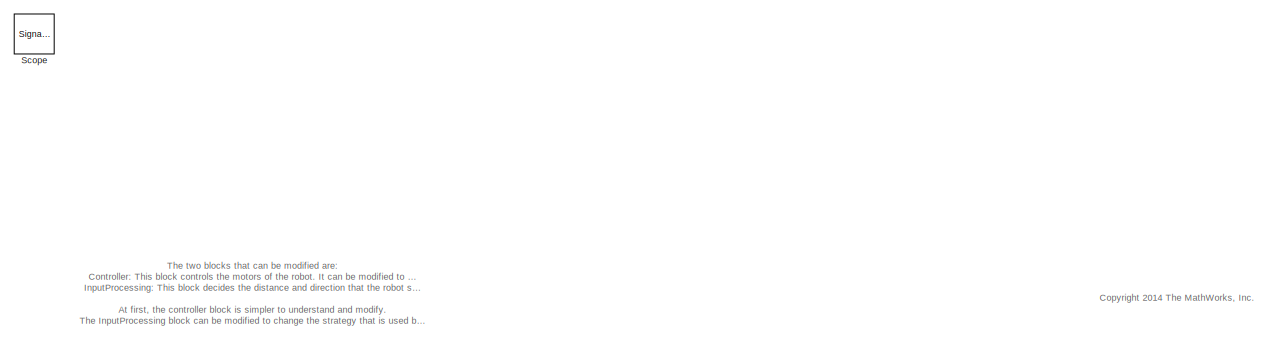
[diagram: root canvas - part 1/2, full width, top band]
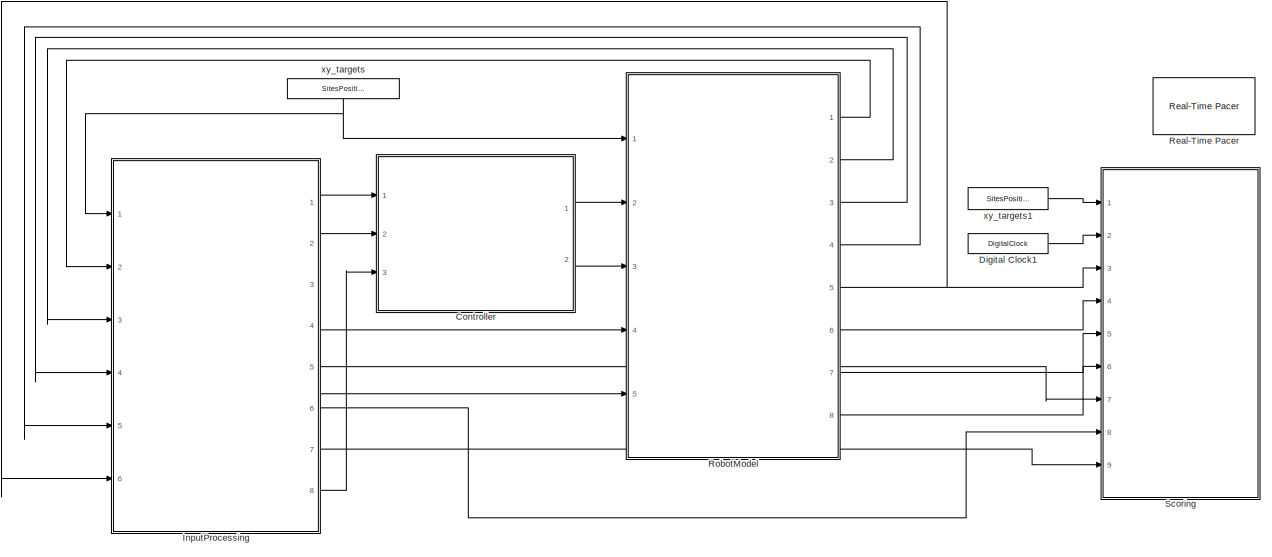
[diagram: root canvas - part 2/2, full width, bottom band]
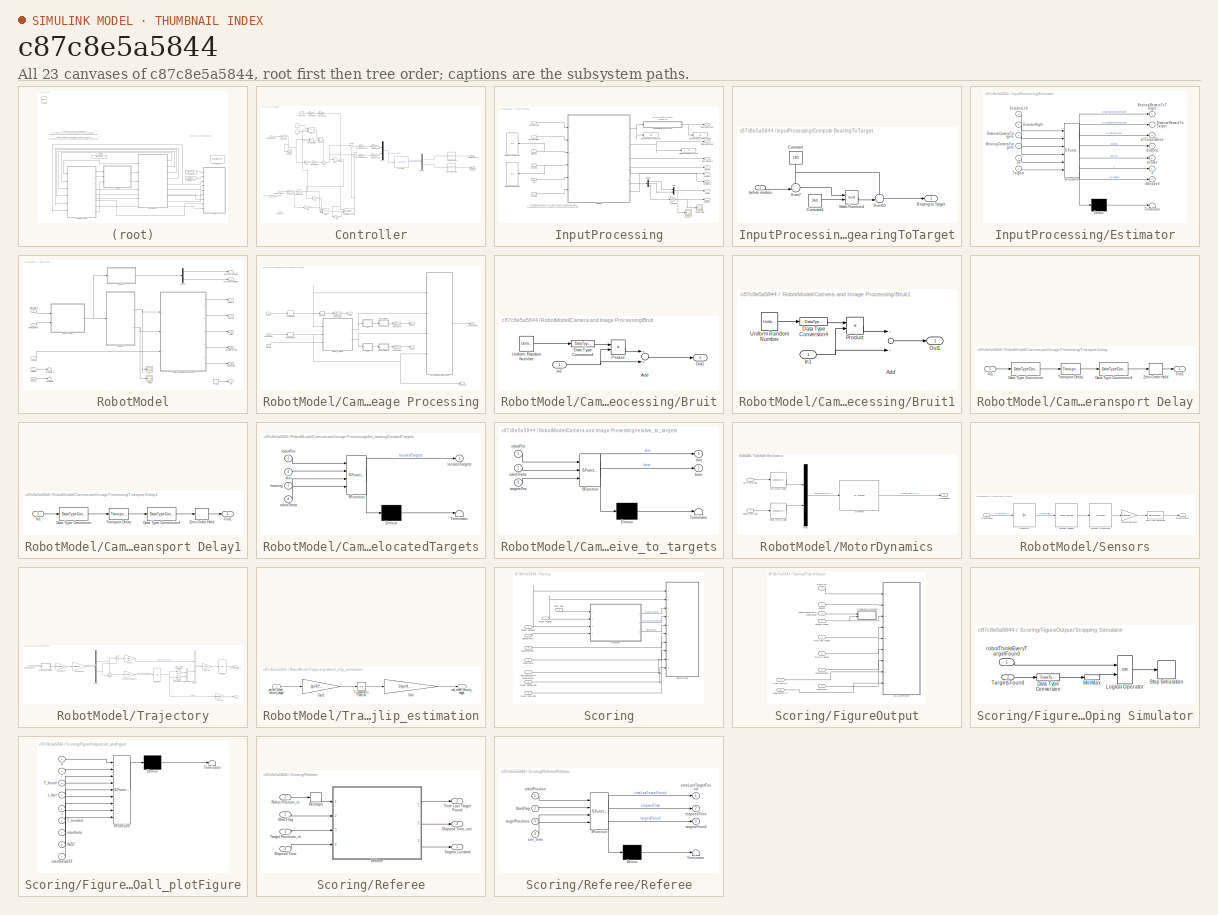
[diagram: thumbnail index - all 23 canvases of the model, root first then tree order]
MODEL slx_c87c8e5a5844
KIND model
CONFIG InitFcn = close('all','force');\n
CONFIG PostLoadFcn = loadRobotParameters\n
CONFIG StartFcn = reset(SimDisplay.getInstance());
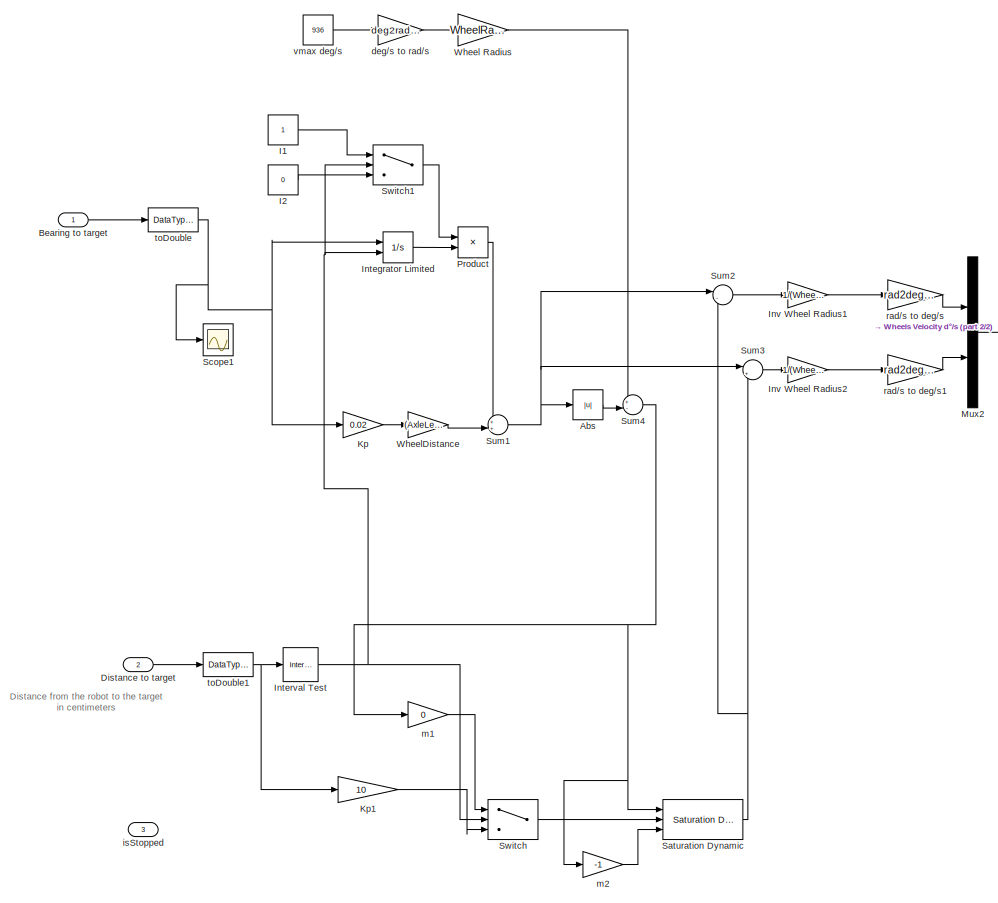
[diagram: Controller - part 1/2, left side, full height]
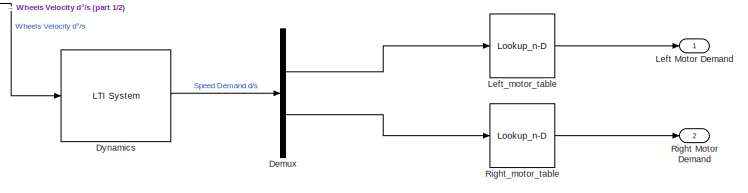
[diagram: Controller - part 2/2, middle right region]
BLOCK [SubSystem] Controller
  Ports = [3, 2]
  RequestExecContextInheritance = off
  TreatAsAtomicUnit = on
BLOCK [Abs] Controller/Abs
  SaturateOnIntegerOverflow = off
BLOCK [Inport] Controller/Bearing to target
  IconDisplay = Port number
  OutDataTypeStr = single
  SamplingMode = Sample based
  SignalType = real
BLOCK [Demux] Controller/Demux
  DisplayOption = bar
  Outputs = 2
  Ports = [1, 2]
BLOCK [Inport] Controller/Distance to target
  IconDisplay = Port number
  Port = 2
  PortDimensions = 1
  SampleTime = Ts
  SamplingMode = Sample based
  SignalType = real
BLOCK [Reference] Controller/Dynamics  REF=cstblocks/LTI System
  IC = []
  Ports = [1, 1]
  SourceBlock = cstblocks/LTI System
  SourceType = LTI Block
  sys = tf(1)*eye(2)
BLOCK [Constant] Controller/I1
BLOCK [Constant] Controller/I2
  Value = 0
BLOCK [Integrator] Controller/Integrator Limited
  ExternalReset = falling
  LimitOutput = on
  LowerSaturationLimit = -100*deg2rad(1)*WheelRadius/100
  Ports = [2, 1]
  UpperSaturationLimit = 100*deg2rad(1)*WheelRadius/100
BLOCK [Reference] Controller/Interval Test  REF=simulink/Logic and Bit
Operations/Interval Test
  IntervalClosedLeft = on
  IntervalClosedRight = on
  OutDataTypeStr = boolean
  Ports = [1, 1]
  SourceBlock = simulink/Logic and Bit\nOperations/Interval Test
  SourceType = Interval Test
  lowlimit = -7
  uplimit = 7
BLOCK [Gain] Controller/Inv Wheel Radius1
  Gain = 1/(WheelRadius/100)
  OutDataTypeStr = Inherit: Inherit via internal rule
  ParamDataTypeStr = Inherit: Inherit via internal rule
  SaturateOnIntegerOverflow = off
BLOCK [Gain] Controller/Inv Wheel Radius2
  Gain = 1/(WheelRadius/100)
  OutDataTypeStr = Inherit: Inherit via internal rule
  ParamDataTypeStr = Inherit: Inherit via internal rule
  SaturateOnIntegerOverflow = off
BLOCK [Gain] Controller/Kp
  Gain = 0.02
  OutDataTypeStr = Inherit: Inherit via internal rule
  ParamDataTypeStr = Inherit: Inherit via internal rule
  SaturateOnIntegerOverflow = off
BLOCK [Gain] Controller/Kp1
  Gain = 10
  OutDataTypeStr = Inherit: Inherit via internal rule
  ParamDataTypeStr = Inherit: Inherit via internal rule
  SaturateOnIntegerOverflow = off
BLOCK [Outport] Controller/Left Motor Demand
  IconDisplay = Port number
  OutDataTypeStr = single
BLOCK [Lookup_n-D] Controller/Left_motor_table
  BreakpointsForDimension1 = motorLinv
  ExtrapMethod = Clip
  InternalRulePriority = Speed
  NumberOfTableDimensions = 1
  OutDataTypeStr = Inherit: Inherit via back propagation
  Ports = [1, 1]
  RndMeth = Simplest
  Table = motorX
BLOCK [Mux] Controller/Mux2
  DisplayOption = bar
  Inputs = 2
  Ports = [2, 1]
BLOCK [Product] Controller/Product
  InputSameDT = off
  OutDataTypeStr = Inherit: Inherit via internal rule
  Ports = [2, 1]
  RndMeth = Floor
  SaturateOnIntegerOverflow = off
BLOCK [Outport] Controller/Right Motor Demand
  IconDisplay = Port number
  OutDataTypeStr = single
  Port = 2
BLOCK [Lookup_n-D] Controller/Right_motor_table
  BreakpointsForDimension1 = motorRinv
  ExtrapMethod = Clip
  InternalRulePriority = Speed
  NumberOfTableDimensions = 1
  OutDataTypeStr = Inherit: Inherit via back propagation
  Ports = [1, 1]
  RndMeth = Simplest
  Table = motorX
BLOCK [Reference] Controller/Saturation Dynamic  REF=simulink/Discontinuities/Saturation
Dynamic
  DoSatur = off
  LockScale = off
  OutDataType = fixdt(1, 16)
  OutDataTypeStr = Inherit: Same as second input
  OutMax = []
  OutMin = []
  OutScaling = 2^-10
  OutputDataTypeScalingMode = Same as second input
  Ports = [3, 1]
  RndMeth = Floor
  SourceBlock = simulink/Discontinuities/Saturation\nDynamic
  SourceType = Saturation Dynamic
BLOCK [Scope] Controller/Scope1
  Floating = off
  NumInputPorts = 1
  Ports = [1]
  SaveName = ScopeData2
  ShowLegends = off
BLOCK [Sum] Controller/Sum1
  IconShape = round
  InputSameDT = off
  Inputs = ++|
  OutDataTypeStr = Inherit: Inherit via internal rule
  Ports = [2, 1]
  SaturateOnIntegerOverflow = off
BLOCK [Sum] Controller/Sum2
  IconShape = round
  InputSameDT = off
  Inputs = |-+
  OutDataTypeStr = Inherit: Inherit via internal rule
  Ports = [2, 1]
  SaturateOnIntegerOverflow = off
BLOCK [Sum] Controller/Sum3
  IconShape = round
  InputSameDT = off
  Inputs = |++
  OutDataTypeStr = Inherit: Inherit via internal rule
  Ports = [2, 1]
  SaturateOnIntegerOverflow = off
BLOCK [Sum] Controller/Sum4
  IconShape = round
  InputSameDT = off
  Inputs = +-|
  OutDataTypeStr = Inherit: Inherit via internal rule
  Ports = [2, 1]
  SaturateOnIntegerOverflow = off
BLOCK [Switch] Controller/Switch
  Criteria = u2 > Threshold
  InputSameDT = off
  SaturateOnIntegerOverflow = off
BLOCK [Switch] Controller/Switch1
  Criteria = u2 > Threshold
  InputSameDT = off
  SaturateOnIntegerOverflow = off
BLOCK [Gain] Controller/Wheel Radius
  Gain = WheelRadius/100
  OutDataTypeStr = Inherit: Inherit via internal rule
  ParamDataTypeStr = Inherit: Inherit via internal rule
  SaturateOnIntegerOverflow = off
BLOCK [Gain] Controller/WheelDistance
  Gain = (AxleLength/100)
  OutDataTypeStr = Inherit: Inherit via internal rule
  ParamDataTypeStr = Inherit: Inherit via internal rule
  SaturateOnIntegerOverflow = off
BLOCK [Gain] Controller/deg//s to rad//s
  Gain = deg2rad(1)
  OutDataTypeStr = Inherit: Inherit via internal rule
  ParamDataTypeStr = Inherit: Inherit via internal rule
  SaturateOnIntegerOverflow = off
BLOCK [Inport] Controller/isStopped
  IconDisplay = Port number
  Port = 3
  PortDimensions = 1
  SampleTime = Ts
  SamplingMode = Sample based
  SignalType = real
BLOCK [Gain] Controller/m1
  Gain = 0
  OutDataTypeStr = Inherit: Inherit via internal rule
  ParamDataTypeStr = Inherit: Inherit via internal rule
  SaturateOnIntegerOverflow = off
BLOCK [Gain] Controller/m2
  Gain = -1
  OutDataTypeStr = Inherit: Inherit via internal rule
  ParamDataTypeStr = Inherit: Inherit via internal rule
  SaturateOnIntegerOverflow = off
BLOCK [Gain] Controller/rad//s to deg//s
  Gain = rad2deg(1)
  OutDataTypeStr = Inherit: Inherit via internal rule
  ParamDataTypeStr = Inherit: Inherit via internal rule
  SaturateOnIntegerOverflow = off
BLOCK [Gain] Controller/rad//s to deg//s1
  Gain = rad2deg(1)
  OutDataTypeStr = Inherit: Inherit via internal rule
  ParamDataTypeStr = Inherit: Inherit via internal rule
  SaturateOnIntegerOverflow = off
BLOCK [DataTypeConversion] Controller/toDouble
  OutDataTypeStr = double
  RndMeth = Floor
  SaturateOnIntegerOverflow = off
BLOCK [DataTypeConversion] Controller/toDouble1
  OutDataTypeStr = double
  RndMeth = Floor
  SaturateOnIntegerOverflow = off
BLOCK [Constant] Controller/vmax deg//s
  Value = 936
BLOCK [DigitalClock] Digital Clock1
  SampleTime = Ts
BLOCK [SubSystem] InputProcessing
  Ports = [6, 8]
  RequestExecContextInheritance = off
BLOCK [Outport] InputProcessing/Bearing to Target
  IconDisplay = Port number
  SampleTime = Ts
BLOCK [Display] InputProcessing/BearingTo All Targets
  Decimation = 1
  Ports = [1]
BLOCK [Display] InputProcessing/BearingToCurrentTarget
  Decimation = 1
  Ports = [1]
BLOCK [Display] InputProcessing/BearingToCurrentTargetDeg
  Decimation = 1
  Ports = [1]
BLOCK [SubSystem] InputProcessing/Compute BearingToTarget
  Ports = [1, 1]
  RequestExecContextInheritance = off
BLOCK [Outport] InputProcessing/Compute BearingToTarget/Bearing to Target
  IconDisplay = Port number
  SampleTime = Ts
BLOCK [Constant] InputProcessing/Compute BearingToTarget/Constant
  OutDataTypeStr = Inherit: Inherit via back propagation
  Value = 180
BLOCK [Constant] InputProcessing/Compute BearingToTarget/Constant1
  OutDataTypeStr = Inherit: Inherit via back propagation
  Value = 360
BLOCK [Math] InputProcessing/Compute BearingToTarget/Math Function1
  Operator = mod
  Ports = [2, 1]
BLOCK [Sum] InputProcessing/Compute BearingToTarget/Sum10
  IconShape = round
  InputSameDT = off
  Inputs = -+|
  OutDataTypeStr = Inherit: Inherit via internal rule
  Ports = [2, 1]
  SaturateOnIntegerOverflow = off
BLOCK [Sum] InputProcessing/Compute BearingToTarget/Sum7
  IconShape = round
  InputSameDT = off
  Inputs = ++|
  OutDataTypeStr = Inherit: Inherit via internal rule
  Ports = [2, 1]
  SaturateOnIntegerOverflow = off
BLOCK [Inport] InputProcessing/Compute BearingToTarget/before modulo
  IconDisplay = Port number
BLOCK [Demux] InputProcessing/Demux
  DisplayOption = bar
  Outputs = 3
  Ports = [1, 3]
BLOCK [Outport] InputProcessing/Distance to Target
  IconDisplay = Port number
  Port = 2
BLOCK [Display] InputProcessing/DistanceRemainToTarget
  Decimation = 1
  Ports = [1]
BLOCK [Display] InputProcessing/DistanceTo All Targets
  Decimation = 1
  Ports = [1]
BLOCK [Inport] InputProcessing/Encoder Left
  IconDisplay = Port number
  OutDataTypeStr = int32
  Port = 2
BLOCK [Inport] InputProcessing/Encoder Right
  IconDisplay = Port number
  OutDataTypeStr = int32
  Port = 3
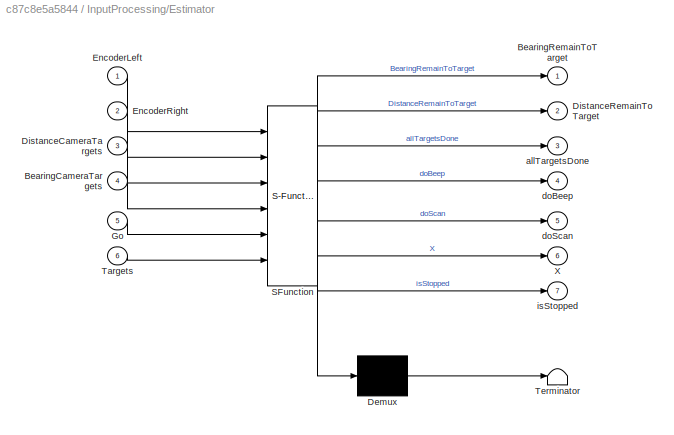
BLOCK [SubSystem] InputProcessing/Estimator
  ErrorFcn = Stateflow.Translate.translate
  PermitHierarchicalResolution = ExplicitOnly
  Ports = [6, 7]
  RequestExecContextInheritance = off
  SFBlockType = Chart
  TreatAsAtomicUnit = on
BLOCK [Demux] InputProcessing/Estimator/ Demux 
  Outputs = 1
  Ports = [1, 1]
BLOCK [S-Function] InputProcessing/Estimator/ SFunction 
  EnableBusSupport = on
  FunctionName = sf_sfun
  Parameters = AxleLength,EncRes,Ts,WheelRadius,lcam,pcam,slip_intensity,startPos,theta0
  PortCounts = [6 8]
  Ports = [6, 8]
  Tag = Stateflow S-Function SimulationModel 2
BLOCK [Terminator] InputProcessing/Estimator/ Terminator 
BLOCK [Inport] InputProcessing/Estimator/BearingCameraTargets
  IconDisplay = Port number
  Port = 4
BLOCK [Outport] InputProcessing/Estimator/BearingRemainToTarget
  IconDisplay = Port number
BLOCK [Inport] InputProcessing/Estimator/DistanceCameraTargets
  IconDisplay = Port number
  Port = 3
BLOCK [Outport] InputProcessing/Estimator/DistanceRemainToTarget
  IconDisplay = Port number
  Port = 2
BLOCK [Inport] InputProcessing/Estimator/EncoderLeft
  IconDisplay = Port number
BLOCK [Inport] InputProcessing/Estimator/EncoderRight
  IconDisplay = Port number
  Port = 2
BLOCK [Inport] InputProcessing/Estimator/Go
  IconDisplay = Port number
  Port = 5
BLOCK [Inport] InputProcessing/Estimator/Targets
  IconDisplay = Port number
  Port = 6
BLOCK [Outport] InputProcessing/Estimator/X
  IconDisplay = Port number
  Port = 6
BLOCK [Outport] InputProcessing/Estimator/allTargetsDone
  IconDisplay = Port number
  Port = 3
BLOCK [Outport] InputProcessing/Estimator/doBeep
  IconDisplay = Port number
  Port = 4
BLOCK [Outport] InputProcessing/Estimator/doScan
  IconDisplay = Port number
  Port = 5
BLOCK [Outport] InputProcessing/Estimator/isStopped
  IconDisplay = Port number
  Port = 7
BLOCK [Inport] InputProcessing/Go
  IconDisplay = Port number
  Port = 6
BLOCK [Mux] InputProcessing/Mux
  DisplayOption = bar
  Inputs = 2
  Ports = [2, 1]
BLOCK [Scope] InputProcessing/ScopeTheta
  DataFormat = StructureWithTime
  Floating = off
  NumInputPorts = 1
  Ports = [1]
  SampleTime = 0
  SaveName = ScopeData3
  ShowLegends = off
  TimeRange = 50
  YMax = 500
  YMin = 0
BLOCK [Scope] InputProcessing/ScopeXY
  DataFormat = StructureWithTime
  Floating = off
  NumInputPorts = 1
  Ports = [1]
  SampleTime = 0
  ShowLegends = off
  TimeRange = 50
  YMax = 100
  YMin = 0
BLOCK [Inport] InputProcessing/Targets
  IconDisplay = Port number
BLOCK [Outport] InputProcessing/XYEST
  IconDisplay = Port number
  Port = 6
BLOCK [Outport] InputProcessing/allTargetsDone
  IconDisplay = Port number
  Port = 5
BLOCK [Inport] InputProcessing/bearing
  IconDisplay = Port number
  Port = 5
BLOCK [Inport] InputProcessing/distance
  IconDisplay = Port number
  Port = 4
BLOCK [Outport] InputProcessing/doBeep
  IconDisplay = Port number
  Port = 3
BLOCK [Outport] InputProcessing/doScan
  IconDisplay = Port number
  Port = 4
BLOCK [Outport] InputProcessing/isStopped
  IconDisplay = Port number
  Port = 8
BLOCK [Gain] InputProcessing/rad2deg
  Gain = 180/pi
  OutDataTypeStr = Inherit: Inherit via internal rule
  ParamDataTypeStr = Inherit: Inherit via internal rule
  SaturateOnIntegerOverflow = off
BLOCK [Outport] InputProcessing/thetaEst
  IconDisplay = Port number
  Port = 7
BLOCK [Reference] Real-Time Pacer  REF=realtime_pacer_lib/Real-Time Pacer
  Ports = []
  SourceBlock = realtime_pacer_lib/Real-Time Pacer
  SourceType = RealTime_Pacer
  simTimePerRealTime = 1
BLOCK [SubSystem] RobotModel
  Ports = [5, 8]
  RequestExecContextInheritance = off
BLOCK [Outport] RobotModel/Bearing
  IconDisplay = Port number
  OutDataTypeStr = int8
  Port = 4
BLOCK [SubSystem] RobotModel/Camera and Image Processing
  Ports = [3, 5]
  RequestExecContextInheritance = off
BLOCK [Outport] RobotModel/Camera and Image Processing/Bearing
  IconDisplay = Port number
  OutDataTypeStr = int8
  Port = 2
BLOCK [SubSystem] RobotModel/Camera and Image Processing/Bruit
  Ports = [1, 1]
  RequestExecContextInheritance = off
BLOCK [Sum] RobotModel/Camera and Image Processing/Bruit/Add
  InputSameDT = off
  OutDataTypeStr = Inherit: Inherit via internal rule
  Ports = [2, 1]
  SaturateOnIntegerOverflow = off
BLOCK [DataTypeConversion] RobotModel/Camera and Image Processing/Bruit/Data Type Conversion4
  RndMeth = Floor
  SaturateOnIntegerOverflow = off
BLOCK [Inport] RobotModel/Camera and Image Processing/Bruit/In1
  IconDisplay = Port number
BLOCK [Outport] RobotModel/Camera and Image Processing/Bruit/Out1
  IconDisplay = Port number
BLOCK [Product] RobotModel/Camera and Image Processing/Bruit/Product
  InputSameDT = off
  OutDataTypeStr = Inherit: Inherit via internal rule
  Ports = [2, 1]
  RndMeth = Floor
  SaturateOnIntegerOverflow = off
BLOCK [UniformRandomNumber] RobotModel/Camera and Image Processing/Bruit/Uniform Random Number
  Maximum = 0.05
  Minimum = -0.05
  SampleTime = Ts
BLOCK [SubSystem] RobotModel/Camera and Image Processing/Bruit1
  Ports = [1, 1]
  RequestExecContextInheritance = off
BLOCK [Sum] RobotModel/Camera and Image Processing/Bruit1/Add
  InputSameDT = off
  OutDataTypeStr = Inherit: Inherit via internal rule
  Ports = [2, 1]
  SaturateOnIntegerOverflow = off
BLOCK [DataTypeConversion] RobotModel/Camera and Image Processing/Bruit1/Data Type Conversion4
  RndMeth = Floor
  SaturateOnIntegerOverflow = off
BLOCK [Inport] RobotModel/Camera and Image Processing/Bruit1/In1
  IconDisplay = Port number
BLOCK [Outport] RobotModel/Camera and Image Processing/Bruit1/Out1
  IconDisplay = Port number
BLOCK [Product] RobotModel/Camera and Image Processing/Bruit1/Product
  InputSameDT = off
  OutDataTypeStr = Inherit: Inherit via internal rule
  Ports = [2, 1]
  RndMeth = Floor
  SaturateOnIntegerOverflow = off
BLOCK [UniformRandomNumber] RobotModel/Camera and Image Processing/Bruit1/Uniform Random Number
  Maximum = 0.05
  Minimum = -0.05
  SampleTime = Ts
BLOCK [DataTypeConversion] RobotModel/Camera and Image Processing/Data Type Conversion3
  RndMeth = Floor
  SaturateOnIntegerOverflow = off
BLOCK [DataTypeConversion] RobotModel/Camera and Image Processing/Data Type Conversion4
  RndMeth = Floor
  SaturateOnIntegerOverflow = off
BLOCK [DataTypeConversion] RobotModel/Camera and Image Processing/Data Type Conversion5
  RndMeth = Floor
  SaturateOnIntegerOverflow = off
BLOCK [Outport] RobotModel/Camera and Image Processing/Distance
  IconDisplay = Port number
  OutDataTypeStr = int16
BLOCK [Outport] RobotModel/Camera and Image Processing/LocatedTargets
  IconDisplay = Port number
  Port = 4
BLOCK [Outport] RobotModel/Camera and Image Processing/Position
  IconDisplay = Port number
  Port = 3
BLOCK [Reshape] RobotModel/Camera and Image Processing/Reshape
  OutputDimensionality = Row vector (2-D)
  Ports = [1, 1]
BLOCK [Outport] RobotModel/Camera and Image Processing/RobotAngle
  IconDisplay = Port number
  Port = 5
BLOCK [Inport] RobotModel/Camera and Image Processing/RobotTheta
  IconDisplay = Port number
  Port = 2
BLOCK [Inport] RobotModel/Camera and Image Processing/RobotXY
  IconDisplay = Port number
BLOCK [Inport] RobotModel/Camera and Image Processing/Tragets
  IconDisplay = Port number
  Port = 3
BLOCK [SubSystem] RobotModel/Camera and Image Processing/Transport Delay
  Ports = [1, 1]
  RequestExecContextInheritance = off
BLOCK [DataTypeConversion] RobotModel/Camera and Image Processing/Transport Delay/Data Type Conversion
  OutDataTypeStr = double
  RndMeth = Floor
  SaturateOnIntegerOverflow = off
BLOCK [DataTypeConversion] RobotModel/Camera and Image Processing/Transport Delay/Data Type Conversion4
  OutDataTypeStr = single
  RndMeth = Floor
  SaturateOnIntegerOverflow = off
BLOCK [Inport] RobotModel/Camera and Image Processing/Transport Delay/In1
  IconDisplay = Port number
BLOCK [Outport] RobotModel/Camera and Image Processing/Transport Delay/Out1
  IconDisplay = Port number
BLOCK [TransportDelay] RobotModel/Camera and Image Processing/Transport Delay/Transport Delay
  BufferSize = initialBufferSize
  DelayTime = timeDelay
  InitialOutput = initialOutput
  PadeOrder = padeOrder
  Ports = [1, 1]
BLOCK [ZeroOrderHold] RobotModel/Camera and Image Processing/Transport Delay/Zero-Order Hold
  SampleTime = Ts
BLOCK [SubSystem] RobotModel/Camera and Image Processing/Transport Delay1
  Ports = [1, 1]
  RequestExecContextInheritance = off
BLOCK [DataTypeConversion] RobotModel/Camera and Image Processing/Transport Delay1/Data Type Conversion
  OutDataTypeStr = double
  RndMeth = Floor
  SaturateOnIntegerOverflow = off
BLOCK [DataTypeConversion] RobotModel/Camera and Image Processing/Transport Delay1/Data Type Conversion4
  OutDataTypeStr = single
  RndMeth = Floor
  SaturateOnIntegerOverflow = off
BLOCK [Inport] RobotModel/Camera and Image Processing/Transport Delay1/In1
  IconDisplay = Port number
BLOCK [Outport] RobotModel/Camera and Image Processing/Transport Delay1/Out1
  IconDisplay = Port number
BLOCK [TransportDelay] RobotModel/Camera and Image Processing/Transport Delay1/Transport Delay
  BufferSize = initialBufferSize
  DelayTime = timeDelay
  InitialOutput = initialOutput
  PadeOrder = padeOrder
  Ports = [1, 1]
BLOCK [ZeroOrderHold] RobotModel/Camera and Image Processing/Transport Delay1/Zero-Order Hold
  SampleTime = Ts
BLOCK [ZeroOrderHold] RobotModel/Camera and Image Processing/Zero-Order Hold
  SampleTime = Ts
BLOCK [ZeroOrderHold] RobotModel/Camera and Image Processing/Zero-Order Hold1
  SampleTime = Ts
BLOCK [SubSystem] RobotModel/Camera and Image Processing/dist_bearing2locatedTargets
  ErrorFcn = Stateflow.Translate.translate
  PermitHierarchicalResolution = ExplicitOnly
  Ports = [4, 1]
  RequestExecContextInheritance = off
  SFBlockType = MATLAB Function
  TreatAsAtomicUnit = on
BLOCK [Demux] RobotModel/Camera and Image Processing/dist_bearing2locatedTargets/ Demux 
  Outputs = 1
  Ports = [1, 1]
BLOCK [S-Function] RobotModel/Camera and Image Processing/dist_bearing2locatedTargets/ SFunction 
  EnableBusSupport = on
  FunctionName = sf_sfun
  PortCounts = [4 2]
  Ports = [4, 2]
  Tag = Stateflow S-Function SimulationModel 8
BLOCK [Terminator] RobotModel/Camera and Image Processing/dist_bearing2locatedTargets/ Terminator 
BLOCK [Inport] RobotModel/Camera and Image Processing/dist_bearing2locatedTargets/bearing
  IconDisplay = Port number
  Port = 3
BLOCK [Inport] RobotModel/Camera and Image Processing/dist_bearing2locatedTargets/dist
  IconDisplay = Port number
  Port = 2
BLOCK [Outport] RobotModel/Camera and Image Processing/dist_bearing2locatedTargets/locatedTargets
  IconDisplay = Port number
BLOCK [Inport] RobotModel/Camera and Image Processing/dist_bearing2locatedTargets/robotPos
  IconDisplay = Port number
BLOCK [Inport] RobotModel/Camera and Image Processing/dist_bearing2locatedTargets/robotTheta
  IconDisplay = Port number
  Port = 4
BLOCK [SubSystem] RobotModel/Camera and Image Processing/relative_to_targets
  ErrorFcn = Stateflow.Translate.translate
  PermitHierarchicalResolution = ExplicitOnly
  Ports = [3, 2]
  RequestExecContextInheritance = off
  SFBlockType = MATLAB Function
  TreatAsAtomicUnit = on
BLOCK [Demux] RobotModel/Camera and Image Processing/relative_to_targets/ Demux 
  Outputs = 1
  Ports = [1, 1]
BLOCK [S-Function] RobotModel/Camera and Image Processing/relative_to_targets/ SFunction 
  EnableBusSupport = on
  FunctionName = sf_sfun
  Parameters = lcam,pcam
  PortCounts = [3 3]
  Ports = [3, 3]
  Tag = Stateflow S-Function SimulationModel 7
BLOCK [Terminator] RobotModel/Camera and Image Processing/relative_to_targets/ Terminator 
BLOCK [Outport] RobotModel/Camera and Image Processing/relative_to_targets/bear
  IconDisplay = Port number
  Port = 2
BLOCK [Outport] RobotModel/Camera and Image Processing/relative_to_targets/dist
  IconDisplay = Port number
BLOCK [Inport] RobotModel/Camera and Image Processing/relative_to_targets/robotPos
  IconDisplay = Port number
BLOCK [Inport] RobotModel/Camera and Image Processing/relative_to_targets/robotTheta
  IconDisplay = Port number
  Port = 2
BLOCK [Inport] RobotModel/Camera and Image Processing/relative_to_targets/targetsPos
  IconDisplay = Port number
  Port = 3
BLOCK [Demux] RobotModel/Demux
  DisplayOption = bar
  Outputs = 2
  Ports = [1, 2]
BLOCK [Outport] RobotModel/Distance
  IconDisplay = Port number
  OutDataTypeStr = int16
  Port = 3
BLOCK [Inport] RobotModel/DoBeep
  IconDisplay = Port number
  Port = 4
  SampleTime = 0
BLOCK [Inport] RobotModel/DoScan
  IconDisplay = Port number
  Port = 5
  SampleTime = 0
BLOCK [Outport] RobotModel/EncoderCountLeft
  IconDisplay = Port number
  OutDataTypeStr = int32
BLOCK [Outport] RobotModel/EncoderCountRight
  IconDisplay = Port number
  OutDataTypeStr = int32
  Port = 2
BLOCK [Outport] RobotModel/Go
  IconDisplay = Port number
  Port = 5
BLOCK [Inport] RobotModel/LeftCommand
  IconDisplay = Port number
  Port = 2
  SampleTime = 0
BLOCK [Outport] RobotModel/LocatedTargets
  IconDisplay = Port number
  Port = 7
BLOCK [SubSystem] RobotModel/MotorDynamics
  Ports = [2, 1]
  RequestExecContextInheritance = off
BLOCK [Reference] RobotModel/MotorDynamics/Dynamics  REF=cstblocks/LTI System
  IC = []
  Ports = [1, 1]
  SourceBlock = cstblocks/LTI System
  SourceType = LTI Block
  sys = tf(1,[TauMotor 1])*eye(2)
BLOCK [Inport] RobotModel/MotorDynamics/LeftCommand
  IconDisplay = Port number
BLOCK [Lookup_n-D] RobotModel/MotorDynamics/Left_motor_table
  BreakpointsForDimension1 = motorX
  ExtrapMethod = Clip
  InternalRulePriority = Speed
  NumberOfTableDimensions = 1
  OutDataTypeStr = Inherit: Inherit via back propagation
  Ports = [1, 1]
  RndMeth = Simplest
  Table = motorL
BLOCK [Mux] RobotModel/MotorDynamics/Mux1
  DisplayOption = bar
  Inputs = 2
  Ports = [2, 1]
BLOCK [Inport] RobotModel/MotorDynamics/RightCommand
  IconDisplay = Port number
  Port = 2
BLOCK [Lookup_n-D] RobotModel/MotorDynamics/Right_motor_table
  BreakpointsForDimension1 = motorX
  ExtrapMethod = Clip
  InternalRulePriority = Speed
  NumberOfTableDimensions = 1
  OutDataTypeStr = Inherit: Inherit via back propagation
  Ports = [1, 1]
  RndMeth = Simplest
  Table = motorR
BLOCK [Outport] RobotModel/MotorDynamics/WheelsSpeed
  IconDisplay = Port number
  PortDimensions = 2
BLOCK [Outport] RobotModel/Position
  IconDisplay = Port number
  Port = 6
BLOCK [Inport] RobotModel/RightCommand
  IconDisplay = Port number
  Port = 3
  SampleTime = 0
BLOCK [Outport] RobotModel/RobotTheta
  IconDisplay = Port number
  Port = 8
BLOCK [SubSystem] RobotModel/Sensors
  Ports = [1, 1]
  RequestExecContextInheritance = off
BLOCK [DataTypeConversion] RobotModel/Sensors/Data Type Conversion
  RndMeth = Floor
  SaturateOnIntegerOverflow = off
BLOCK [Quantizer] RobotModel/Sensors/Encoder Quantization
  QuantizationInterval = (360/EncRes)
BLOCK [ZeroOrderHold] RobotModel/Sensors/Encoder Reading
  SampleTime = Ts
BLOCK [Outport] RobotModel/Sensors/EncodersCount
  IconDisplay = Port number
BLOCK [Integrator] RobotModel/Sensors/Integrator
  InitialCondition = [EncL_init;EncR_init]
  Ports = [1, 1]
BLOCK [Inport] RobotModel/Sensors/WheelsSpeed
  IconDisplay = Port number
BLOCK [Gain] RobotModel/Sensors/deg2encoderCount
  Gain = EncRes/360
  OutDataTypeStr = Inherit: Inherit via back propagation
  ParamDataTypeStr = Inherit: Inherit via internal rule
  SaturateOnIntegerOverflow = off
BLOCK [Inport] RobotModel/Targets
  IconDisplay = Port number
BLOCK [Terminator] RobotModel/Terminator
BLOCK [Terminator] RobotModel/Terminator1
BLOCK [Scope] RobotModel/Theta
  DataFormat = StructureWithTime
  Floating = off
  NumInputPorts = 1
  Ports = [1]
  SampleTime = 0
  SaveName = ScopeData5
  ShowLegends = off
  TimeRange = 50
  YMax = 300
  YMin = 0
BLOCK [SubSystem] RobotModel/Trajectory
  Ports = [1, 2]
  RequestExecContextInheritance = off
BLOCK [Gain] RobotModel/Trajectory/Average
  Gain = 0.5
  OutDataTypeStr = Inherit: Inherit via internal rule
  ParamDataTypeStr = Inherit: Inherit via internal rule
  SaturateOnIntegerOverflow = off
BLOCK [Demux] RobotModel/Trajectory/Demux
  DisplayOption = bar
  Outputs = 2
  Ports = [1, 2]
BLOCK [Integrator] RobotModel/Trajectory/Integrator1
  InitialCondition = deg2rad(theta0)
  Ports = [1, 1]
BLOCK [Integrator] RobotModel/Trajectory/Integrator2
  InitialCondition = startPos
  Ports = [1, 1]
BLOCK [Gain] RobotModel/Trajectory/Inverse WheelDistance
  Gain = 1/(AxleLength/100)
  OutDataTypeStr = Inherit: Inherit via internal rule
  ParamDataTypeStr = Inherit: Inherit via internal rule
  SaturateOnIntegerOverflow = off
BLOCK [Product] RobotModel/Trajectory/Product
  InputSameDT = off
  OutDataTypeStr = Inherit: Inherit via internal rule
  Ports = [2, 1]
  RndMeth = Floor
  SaturateOnIntegerOverflow = off
BLOCK [Outport] RobotModel/Trajectory/RobotPositionXY
  IconDisplay = Port number
BLOCK [Sum] RobotModel/Trajectory/Sum
  IconShape = round
  InputSameDT = off
  Inputs = |++
  OutDataTypeStr = Inherit: Inherit via internal rule
  Ports = [2, 1]
  SaturateOnIntegerOverflow = off
BLOCK [Sum] RobotModel/Trajectory/Sum1
  IconShape = round
  InputSameDT = off
  Inputs = -+|
  OutDataTypeStr = Inherit: Inherit via internal rule
  Ports = [2, 1]
  SaturateOnIntegerOverflow = off
BLOCK [Outport] RobotModel/Trajectory/Theta
  IconDisplay = Port number
  Port = 2
BLOCK [Trigonometry] RobotModel/Trajectory/Trigonometric Function1
  Ports = [1, 1]
BLOCK [Trigonometry] RobotModel/Trajectory/Trigonometric Function2
  Operator = cos
  Ports = [1, 1]
BLOCK [Concatenate] RobotModel/Trajectory/Vector Concatenate
  Ports = [2, 1]
BLOCK [Gain] RobotModel/Trajectory/Wheel Radius
  Gain = WheelRadius/100
  OutDataTypeStr = Inherit: Inherit via internal rule
  ParamDataTypeStr = Inherit: Inherit via internal rule
  SaturateOnIntegerOverflow = off
BLOCK [Inport] RobotModel/Trajectory/WheelsSpeed
  IconDisplay = Port number
  PortDimensions = 2
BLOCK [Gain] RobotModel/Trajectory/deg//s to rad//s
  Gain = deg2rad(1)
  OutDataTypeStr = Inherit: Inherit via internal rule
  ParamDataTypeStr = Inherit: Inherit via internal rule
  SaturateOnIntegerOverflow = off
BLOCK [Gain] RobotModel/Trajectory/m//s to cm//s
  Gain = 100
  OutDataTypeStr = Inherit: Inherit via internal rule
  ParamDataTypeStr = Inherit: Inherit via internal rule
  SaturateOnIntegerOverflow = off
BLOCK [Gain] RobotModel/Trajectory/rad2deg
  Gain = rad2deg(1)
  OutDataTypeStr = Inherit: Inherit via internal rule
  ParamDataTypeStr = Inherit: Inherit via internal rule
  SaturateOnIntegerOverflow = off
BLOCK [SubSystem] RobotModel/Trajectory/wheel_slip_estimation
  Ports = [1, 1]
  RequestExecContextInheritance = off
BLOCK [Gain] RobotModel/Trajectory/wheel_slip_estimation/Gain
  Gain = 1/(pi/4 * slip_intensity)
  OutDataTypeStr = Inherit: Inherit via internal rule
  ParamDataTypeStr = Inherit: Inherit via internal rule
  SaturateOnIntegerOverflow = off
BLOCK [Gain] RobotModel/Trajectory/wheel_slip_estimation/Gain1
  Gain = (pi/4)*slip_intensity
  OutDataTypeStr = Inherit: Inherit via internal rule
  ParamDataTypeStr = Inherit: Inherit via internal rule
  SaturateOnIntegerOverflow = off
BLOCK [Trigonometry] RobotModel/Trajectory/wheel_slip_estimation/Trigonometric Function
  Operator = atan
  Ports = [1, 1]
BLOCK [Inport] RobotModel/Trajectory/wheel_slip_estimation/perfect_wheel_velocity_degps
  IconDisplay = Port number
BLOCK [Outport] RobotModel/Trajectory/wheel_slip_estimation/real_wheel_velocity_degps
  IconDisplay = Port number
BLOCK [Constant] RobotModel/True
  OutDataTypeStr = boolean
  OutMax = 1
  OutMin = 0
  SampleTime = 0.1
BLOCK [Scope] RobotModel/XY
  DataFormat = StructureWithTime
  Floating = off
  NumInputPorts = 1
  Ports = [1]
  SampleTime = 0
  SaveName = ScopeData4
  ShowLegends = off
  TimeRange = 50
  YMax = 92.5
  YMin = 50
BLOCK [SignalViewerScope] Scope
  IOType = viewer
  MaxDataPoints = 7500
  NumInputPorts = 1
  Ports = []
  RefreshTime = 0.035000
  ShowDataMarkers = off
  ShowLegends = off
BLOCK [SubSystem] Scoring
  Ports = [9]
  RequestExecContextInheritance = off
BLOCK [Inport] Scoring/Elapsed Time
  IconDisplay = Port number
  Port = 2
BLOCK [SubSystem] Scoring/FigureOutput
  Ports = [10]
  RequestExecContextInheritance = off
  SimViewingDevice = on
  TreatAsAtomicUnit = on
BLOCK [Inport] Scoring/FigureOutput/Position
  IconDisplay = Port number
  Port = 2
BLOCK [Inport] Scoring/FigureOutput/PositionEST
  IconDisplay = Port number
  Port = 9
BLOCK [SubSystem] Scoring/FigureOutput/Stopping Simulator
  Ports = [2]
  RequestExecContextInheritance = off
BLOCK [DataTypeConversion] Scoring/FigureOutput/Stopping Simulator/Data Type Conversion
  OutDataTypeStr = double
  RndMeth = Floor
  SaturateOnIntegerOverflow = off
BLOCK [Logic] Scoring/FigureOutput/Stopping Simulator/Logical Operator
  AllPortsSameDT = off
  Operator = OR
  OutDataTypeStr = boolean
  Ports = [2, 1]
BLOCK [MinMax] Scoring/FigureOutput/Stopping Simulator/MinMax
  InputSameDT = off
  Ports = [1, 1]
  SaturateOnIntegerOverflow = off
BLOCK [Stop] Scoring/FigureOutput/Stopping Simulator/Stop Simulation
BLOCK [Inport] Scoring/FigureOutput/Stopping Simulator/Targets Found
  IconDisplay = Port number
  Port = 2
BLOCK [Inport] Scoring/FigureOutput/Stopping Simulator/robotThinksEveryTargetFound
  IconDisplay = Port number
BLOCK [Inport] Scoring/FigureOutput/Targets
  IconDisplay = Port number
BLOCK [Inport] Scoring/FigureOutput/Targets Found
  IconDisplay = Port number
  Port = 3
BLOCK [Inport] Scoring/FigureOutput/Time Elapsed
  IconDisplay = Port number
  Port = 5
BLOCK [Inport] Scoring/FigureOutput/Time Last Found
  IconDisplay = Port number
  Port = 4
BLOCK [SubSystem] Scoring/FigureOutput/call_plotFigure
  ErrorFcn = Stateflow.Translate.translate
  PermitHierarchicalResolution = ExplicitOnly
  Ports = [9]
  RequestExecContextInheritance = off
  SFBlockType = MATLAB Function
  TreatAsAtomicUnit = on
BLOCK [Demux] Scoring/FigureOutput/call_plotFigure/ Demux 
  Outputs = 1
  Ports = [1, 1]
BLOCK [S-Function] Scoring/FigureOutput/call_plotFigure/ SFunction 
  EnableBusSupport = on
  FunctionName = sf_sfun
  Parameters = lcam,pcam
  PortCounts = [9 1]
  Ports = [9, 1]
  Tag = Stateflow S-Function SimulationModel 6
BLOCK [Terminator] Scoring/FigureOutput/call_plotFigure/ Terminator 
BLOCK [Inport] Scoring/FigureOutput/call_plotFigure/T
  IconDisplay = Port number
  Port = 2
BLOCK [Inport] Scoring/FigureOutput/call_plotFigure/T_found
  IconDisplay = Port number
  Port = 3
BLOCK [Inport] Scoring/FigureOutput/call_plotFigure/T_located
  IconDisplay = Port number
  Port = 6
BLOCK [Inport] Scoring/FigureOutput/call_plotFigure/X
  IconDisplay = Port number
BLOCK [Inport] Scoring/FigureOutput/call_plotFigure/XEST
  IconDisplay = Port number
  Port = 8
BLOCK [Inport] Scoring/FigureOutput/call_plotFigure/robotheta
  IconDisplay = Port number
  Port = 7
BLOCK [Inport] Scoring/FigureOutput/call_plotFigure/robothetaEST
  IconDisplay = Port number
  Port = 9
BLOCK [Inport] Scoring/FigureOutput/call_plotFigure/t
  IconDisplay = Port number
  Port = 5
BLOCK [Inport] Scoring/FigureOutput/call_plotFigure/t_last
  IconDisplay = Port number
  Port = 4
BLOCK [Inport] Scoring/FigureOutput/locatedTargets
  IconDisplay = Port number
  Port = 6
BLOCK [Inport] Scoring/FigureOutput/robotThinksEveryTargetFound
  IconDisplay = Port number
  Port = 8
BLOCK [Inport] Scoring/FigureOutput/robottheta
  IconDisplay = Port number
  Port = 7
BLOCK [Inport] Scoring/FigureOutput/robotthetaEST
  IconDisplay = Port number
  Port = 10
BLOCK [SubSystem] Scoring/Referee
  Ports = [4, 3]
  RequestExecContextInheritance = off
BLOCK [Inport] Scoring/Referee/Elapsed Time
  IconDisplay = Port number
  Port = 4
  SampleTime = Ts
BLOCK [Outport] Scoring/Referee/Elapsed Time_sec
  IconDisplay = Port number
  Port = 3
  PortDimensions = 1
BLOCK [SubSystem] Scoring/Referee/Referee
  ErrorFcn = Stateflow.Translate.translate
  PermitHierarchicalResolution = ExplicitOnly
  Ports = [4, 3]
  RequestExecContextInheritance = off
  SFBlockType = Chart
  TreatAsAtomicUnit = on
BLOCK [Demux] Scoring/Referee/Referee/ Demux 
  Outputs = 1
  Ports = [1, 1]
BLOCK [S-Function] Scoring/Referee/Referee/ SFunction 
  EnableBusSupport = on
  FunctionName = sf_sfun
  Parameters = startPos
  PortCounts = [4 4]
  Ports = [4, 4]
  Tag = Stateflow S-Function SimulationModel 5
BLOCK [Terminator] Scoring/Referee/Referee/ Terminator 
BLOCK [Inport] Scoring/Referee/Referee/StartFlag
  IconDisplay = Port number
  Port = 2
BLOCK [Outport] Scoring/Referee/Referee/elapsedTime
  IconDisplay = Port number
  Port = 2
BLOCK [Inport] Scoring/Referee/Referee/robotPosition
  IconDisplay = Port number
BLOCK [Inport] Scoring/Referee/Referee/sim_time
  IconDisplay = Port number
  Port = 4
BLOCK [Inport] Scoring/Referee/Referee/targetPositions
  IconDisplay = Port number
  Port = 3
BLOCK [Outport] Scoring/Referee/Referee/targetsFound
  IconDisplay = Port number
  Port = 3
BLOCK [Outport] Scoring/Referee/Referee/timeLastTargetFound
  IconDisplay = Port number
BLOCK [Reshape] Scoring/Referee/Reshape
  OutputDimensionality = Row vector (2-D)
  Ports = [1, 1]
BLOCK [Inport] Scoring/Referee/Robot Position_m
  IconDisplay = Port number
  Port = 2
  SampleTime = Ts
BLOCK [Inport] Scoring/Referee/Start Flag
  IconDisplay = Port number
  OutDataTypeStr = boolean
  SampleTime = Ts
BLOCK [Inport] Scoring/Referee/Target Positions_m
  IconDisplay = Port number
  Port = 3
  SampleTime = Ts
BLOCK [Outport] Scoring/Referee/Targets Located
  IconDisplay = Port number
BLOCK [Outport] Scoring/Referee/Time Last Target Found
  IconDisplay = Port number
  Port = 2
  PortDimensions = 1
  VarSizeSig = No
BLOCK [Inport] Scoring/Robot Position
  IconDisplay = Port number
  Port = 4
BLOCK [Inport] Scoring/Robot Position Est
  IconDisplay = Port number
  Port = 8
BLOCK [Inport] Scoring/Robot Theta Est
  IconDisplay = Port number
  Port = 9
BLOCK [Inport] Scoring/Start Flag
  IconDisplay = Port number
  Port = 3
BLOCK [Inport] Scoring/Target Positions
  IconDisplay = Port number
BLOCK [Inport] Scoring/locatedTargets
  IconDisplay = Port number
  Port = 5
BLOCK [Inport] Scoring/robotThinksEveryTargetsFound
  IconDisplay = Port number
  Port = 7
BLOCK [Inport] Scoring/robottheta
  IconDisplay = Port number
  Port = 6
BLOCK [Constant] xy_targets
  OutDataTypeStr = single
  Value = SitesPositions
BLOCK [Constant] xy_targets1
  OutDataTypeStr = single
  Value = SitesPositions
ANNOTATION (root): <copyright redacted>
ANNOTATION (root): The two blocks that can be modified are: Controller: This block controls the motors of the robot. It can be modified to adjust the speed at which the robot will move to its indicated distance and direction. InputProcessing: This block decides the distance and direction that the robot should follow. At first, the controller block is simpler to understand and modify. The InputProcessing block can be...<+143ch>
ANNOTATION Controller: Distance from the robot to the target in centimeters
ANNOTATION InputProcessing: Ensure robot takes shortest angle to target.
ANNOTATION InputProcessing: The Estimator block is the "brain" of the robot. According to the information from the encoders and the camera and the target objective given by the TargetSequencing block, it chooses the direction towards which the robot will try to move.
LINE Controller/Abs:1 -> Controller/Sum4:2
LINE Controller/Bearing to target:1 -> Controller/toDouble:1
LINE Controller/Demux:1 -> Controller/Left_motor_table:1
LINE Controller/Demux:2 -> Controller/Right_motor_table:1
LINE Controller/Distance to target:1 -> Controller/toDouble1:1
LINE Controller/Dynamics:1 -> Controller/Demux:1
LINE Controller/I1:1 -> Controller/Switch1:1
LINE Controller/I2:1 -> Controller/Switch1:3
LINE Controller/Integrator Limited:1 -> Controller/Product:2
NET Controller/Interval Test:1 -> Controller/Integrator Limited:2, Controller/Switch1:2, Controller/Switch:2
LINE Controller/Inv Wheel Radius1:1 -> Controller/rad//s to deg//s:1
LINE Controller/Inv Wheel Radius2:1 -> Controller/rad//s to deg//s1:1
LINE Controller/Kp1:1 -> Controller/Switch:3
LINE Controller/Kp:1 -> Controller/WheelDistance:1
LINE Controller/Left_motor_table:1 -> Controller/Left Motor Demand:1
LINE Controller/Mux2:1 -> Controller/Dynamics:1
LINE Controller/Product:1 -> Controller/Sum1:1
LINE Controller/Right_motor_table:1 -> Controller/Right Motor Demand:1
NET Controller/Saturation Dynamic:1 -> Controller/Sum2:2, Controller/Sum3:2
NET Controller/Sum1:1 -> Controller/Abs:1, Controller/Sum2:1, Controller/Sum3:1
LINE Controller/Sum2:1 -> Controller/Inv Wheel Radius1:1
LINE Controller/Sum3:1 -> Controller/Inv Wheel Radius2:1
NET Controller/Sum4:1 -> Controller/Saturation Dynamic:1, Controller/m1:1, Controller/m2:1
LINE Controller/Switch1:1 -> Controller/Product:1
LINE Controller/Switch:1 -> Controller/Saturation Dynamic:2
LINE Controller/Wheel Radius:1 -> Controller/Sum4:1
LINE Controller/WheelDistance:1 -> Controller/Sum1:2
LINE Controller/deg//s to rad//s:1 -> Controller/Wheel Radius:1
LINE Controller/m1:1 -> Controller/Switch:1
LINE Controller/m2:1 -> Controller/Saturation Dynamic:3
LINE Controller/rad//s to deg//s1:1 -> Controller/Mux2:2
LINE Controller/rad//s to deg//s:1 -> Controller/Mux2:1
NET Controller/toDouble1:1 -> Controller/Interval Test:1, Controller/Kp1:1
NET Controller/toDouble:1 -> Controller/Integrator Limited:1, Controller/Kp:1, Controller/Scope1:1
LINE Controller/vmax deg//s:1 -> Controller/deg//s to rad//s:1
LINE Controller:1 -> RobotModel:2
LINE Controller:2 -> RobotModel:3
LINE Digital Clock1:1 -> Scoring:2
LINE InputProcessing/Compute BearingToTarget/Constant1:1 -> InputProcessing/Compute BearingToTarget/Math Function1:2
NET InputProcessing/Compute BearingToTarget/Constant:1 -> InputProcessing/Compute BearingToTarget/Sum10:1, InputProcessing/Compute BearingToTarget/Sum7:1
LINE InputProcessing/Compute BearingToTarget/Math Function1:1 -> InputProcessing/Compute BearingToTarget/Sum10:2
LINE InputProcessing/Compute BearingToTarget/Sum10:1 -> InputProcessing/Compute BearingToTarget/Bearing to Target:1
LINE InputProcessing/Compute BearingToTarget/Sum7:1 -> InputProcessing/Compute BearingToTarget/Math Function1:1
LINE InputProcessing/Compute BearingToTarget/before modulo:1 -> InputProcessing/Compute BearingToTarget/Sum7:2
NET InputProcessing/Compute BearingToTarget:1 -> InputProcessing/Bearing to Target:1, InputProcessing/BearingToCurrentTargetDeg:1
LINE InputProcessing/Demux:1 -> InputProcessing/Mux:1
LINE InputProcessing/Demux:2 -> InputProcessing/Mux:2
LINE InputProcessing/Demux:3 -> InputProcessing/rad2deg:1
LINE InputProcessing/Encoder Left:1 -> InputProcessing/Estimator:1
LINE InputProcessing/Encoder Right:1 -> InputProcessing/Estimator:2
NET InputProcessing/Estimator:1 -> InputProcessing/BearingToCurrentTarget:1, InputProcessing/Compute BearingToTarget:1
NET InputProcessing/Estimator:2 -> InputProcessing/Distance to Target:1, InputProcessing/DistanceRemainToTarget:1
LINE InputProcessing/Estimator:3 -> InputProcessing/allTargetsDone:1
LINE InputProcessing/Estimator:4 -> InputProcessing/doBeep:1
LINE InputProcessing/Estimator:5 -> InputProcessing/doScan:1
LINE InputProcessing/Estimator:6 -> InputProcessing/Demux:1
LINE InputProcessing/Estimator:7 -> InputProcessing/isStopped:1
LINE InputProcessing/Go:1 -> InputProcessing/Estimator:5
NET InputProcessing/Mux:1 -> InputProcessing/ScopeXY:1, InputProcessing/XYEST:1
LINE InputProcessing/Targets:1 -> InputProcessing/Estimator:6
NET InputProcessing/bearing:1 -> InputProcessing/BearingTo All Targets:1, InputProcessing/Estimator:4
NET InputProcessing/distance:1 -> InputProcessing/DistanceTo All Targets:1, InputProcessing/Estimator:3
NET InputProcessing/rad2deg:1 -> InputProcessing/ScopeTheta:1, InputProcessing/thetaEst:1
LINE InputProcessing:1 -> Controller:1
LINE InputProcessing:2 -> Controller:2
LINE InputProcessing:3 -> RobotModel:4
LINE InputProcessing:4 -> RobotModel:5
LINE InputProcessing:5 -> Scoring:7
LINE InputProcessing:6 -> Scoring:8
LINE InputProcessing:7 -> Scoring:9
LINE InputProcessing:8 -> Controller:3
LINE RobotModel/Camera and Image Processing/Bruit/Add:1 -> RobotModel/Camera and Image Processing/Bruit/Out1:1
LINE RobotModel/Camera and Image Processing/Bruit/Data Type Conversion4:1 -> RobotModel/Camera and Image Processing/Bruit/Product:1
NET RobotModel/Camera and Image Processing/Bruit/In1:1 -> RobotModel/Camera and Image Processing/Bruit/Add:2, RobotModel/Camera and Image Processing/Bruit/Product:2
LINE RobotModel/Camera and Image Processing/Bruit/Product:1 -> RobotModel/Camera and Image Processing/Bruit/Add:1
LINE RobotModel/Camera and Image Processing/Bruit/Uniform Random Number:1 -> RobotModel/Camera and Image Processing/Bruit/Data Type Conversion4:1
LINE RobotModel/Camera and Image Processing/Bruit1/Add:1 -> RobotModel/Camera and Image Processing/Bruit1/Out1:1
LINE RobotModel/Camera and Image Processing/Bruit1/Data Type Conversion4:1 -> RobotModel/Camera and Image Processing/Bruit1/Product:1
NET RobotModel/Camera and Image Processing/Bruit1/In1:1 -> RobotModel/Camera and Image Processing/Bruit1/Add:2, RobotModel/Camera and Image Processing/Bruit1/Product:2
LINE RobotModel/Camera and Image Processing/Bruit1/Product:1 -> RobotModel/Camera and Image Processing/Bruit1/Add:1
LINE RobotModel/Camera and Image Processing/Bruit1/Uniform Random Number:1 -> RobotModel/Camera and Image Processing/Bruit1/Data Type Conversion4:1
LINE RobotModel/Camera and Image Processing/Bruit1:1 -> RobotModel/Camera and Image Processing/Transport Delay1:1
LINE RobotModel/Camera and Image Processing/Bruit:1 -> RobotModel/Camera and Image Processing/Transport Delay:1
LINE RobotModel/Camera and Image Processing/Data Type Conversion3:1 -> RobotModel/Camera and Image Processing/Position:1
LINE RobotModel/Camera and Image Processing/Data Type Conversion4:1 -> RobotModel/Camera and Image Processing/Distance:1
LINE RobotModel/Camera and Image Processing/Data Type Conversion5:1 -> RobotModel/Camera and Image Processing/Bearing:1
LINE RobotModel/Camera and Image Processing/Reshape:1 -> RobotModel/Camera and Image Processing/Data Type Conversion3:1
LINE RobotModel/Camera and Image Processing/RobotTheta:1 -> RobotModel/Camera and Image Processing/Zero-Order Hold1:1
LINE RobotModel/Camera and Image Processing/RobotXY:1 -> RobotModel/Camera and Image Processing/Zero-Order Hold:1
LINE RobotModel/Camera and Image Processing/Tragets:1 -> RobotModel/Camera and Image Processing/relative_to_targets:3
LINE RobotModel/Camera and Image Processing/Transport Delay/Data Type Conversion4:1 -> RobotModel/Camera and Image Processing/Transport Delay/Zero-Order Hold:1
LINE RobotModel/Camera and Image Processing/Transport Delay/Data Type Conversion:1 -> RobotModel/Camera and Image Processing/Transport Delay/Transport Delay:1
LINE RobotModel/Camera and Image Processing/Transport Delay/In1:1 -> RobotModel/Camera and Image Processing/Transport Delay/Data Type Conversion:1
LINE RobotModel/Camera and Image Processing/Transport Delay/Transport Delay:1 -> RobotModel/Camera and Image Processing/Transport Delay/Data Type Conversion4:1
LINE RobotModel/Camera and Image Processing/Transport Delay/Zero-Order Hold:1 -> RobotModel/Camera and Image Processing/Transport Delay/Out1:1
LINE RobotModel/Camera and Image Processing/Transport Delay1/Data Type Conversion4:1 -> RobotModel/Camera and Image Processing/Transport Delay1/Zero-Order Hold:1
LINE RobotModel/Camera and Image Processing/Transport Delay1/Data Type Conversion:1 -> RobotModel/Camera and Image Processing/Transport Delay1/Transport Delay:1
LINE RobotModel/Camera and Image Processing/Transport Delay1/In1:1 -> RobotModel/Camera and Image Processing/Transport Delay1/Data Type Conversion:1
LINE RobotModel/Camera and Image Processing/Transport Delay1/Transport Delay:1 -> RobotModel/Camera and Image Processing/Transport Delay1/Data Type Conversion4:1
LINE RobotModel/Camera and Image Processing/Transport Delay1/Zero-Order Hold:1 -> RobotModel/Camera and Image Processing/Transport Delay1/Out1:1
LINE RobotModel/Camera and Image Processing/Transport Delay1:1 -> RobotModel/Camera and Image Processing/Data Type Conversion5:1
LINE RobotModel/Camera and Image Processing/Transport Delay:1 -> RobotModel/Camera and Image Processing/Data Type Conversion4:1
NET RobotModel/Camera and Image Processing/Zero-Order Hold1:1 -> RobotModel/Camera and Image Processing/RobotAngle:1, RobotModel/Camera and Image Processing/dist_bearing2locatedTargets:4, RobotModel/Camera and Image Processing/relative_to_targets:2
NET RobotModel/Camera and Image Processing/Zero-Order Hold:1 -> RobotModel/Camera and Image Processing/Reshape:1, RobotModel/Camera and Image Processing/dist_bearing2locatedTargets:1, RobotModel/Camera and Image Processing/relative_to_targets:1
LINE RobotModel/Camera and Image Processing/dist_bearing2locatedTargets:1 -> RobotModel/Camera and Image Processing/LocatedTargets:1
NET RobotModel/Camera and Image Processing/relative_to_targets:1 -> RobotModel/Camera and Image Processing/Bruit:1, RobotModel/Camera and Image Processing/dist_bearing2locatedTargets:2
NET RobotModel/Camera and Image Processing/relative_to_targets:2 -> RobotModel/Camera and Image Processing/Bruit1:1, RobotModel/Camera and Image Processing/dist_bearing2locatedTargets:3
LINE RobotModel/Camera and Image Processing:1 -> RobotModel/Distance:1
LINE RobotModel/Camera and Image Processing:2 -> RobotModel/Bearing:1
LINE RobotModel/Camera and Image Processing:3 -> RobotModel/Position:1
LINE RobotModel/Camera and Image Processing:4 -> RobotModel/LocatedTargets:1
LINE RobotModel/Camera and Image Processing:5 -> RobotModel/RobotTheta:1
LINE RobotModel/Demux:1 -> RobotModel/EncoderCountLeft:1
LINE RobotModel/Demux:2 -> RobotModel/EncoderCountRight:1
LINE RobotModel/DoBeep:1 -> RobotModel/Terminator1:1
LINE RobotModel/DoScan:1 -> RobotModel/Terminator:1
LINE RobotModel/LeftCommand:1 -> RobotModel/MotorDynamics:1
LINE RobotModel/MotorDynamics/Dynamics:1 -> RobotModel/MotorDynamics/WheelsSpeed:1
LINE RobotModel/MotorDynamics/LeftCommand:1 -> RobotModel/MotorDynamics/Left_motor_table:1
LINE RobotModel/MotorDynamics/Left_motor_table:1 -> RobotModel/MotorDynamics/Mux1:1
LINE RobotModel/MotorDynamics/Mux1:1 -> RobotModel/MotorDynamics/Dynamics:1
LINE RobotModel/MotorDynamics/RightCommand:1 -> RobotModel/MotorDynamics/Right_motor_table:1
LINE RobotModel/MotorDynamics/Right_motor_table:1 -> RobotModel/MotorDynamics/Mux1:2
NET RobotModel/MotorDynamics:1 -> RobotModel/Sensors:1, RobotModel/Trajectory:1
LINE RobotModel/RightCommand:1 -> RobotModel/MotorDynamics:2
LINE RobotModel/Sensors/Data Type Conversion:1 -> RobotModel/Sensors/EncodersCount:1
LINE RobotModel/Sensors/Encoder Quantization:1 -> RobotModel/Sensors/deg2encoderCount:1
LINE RobotModel/Sensors/Encoder Reading:1 -> RobotModel/Sensors/Encoder Quantization:1
LINE RobotModel/Sensors/Integrator:1 -> RobotModel/Sensors/Encoder Reading:1
LINE RobotModel/Sensors/WheelsSpeed:1 -> RobotModel/Sensors/Integrator:1
LINE RobotModel/Sensors/deg2encoderCount:1 -> RobotModel/Sensors/Data Type Conversion:1
LINE RobotModel/Sensors:1 -> RobotModel/Demux:1
LINE RobotModel/Targets:1 -> RobotModel/Camera and Image Processing:3
LINE RobotModel/Trajectory/Average:1 -> RobotModel/Trajectory/Product:1
NET RobotModel/Trajectory/Demux:1 -> RobotModel/Trajectory/Sum1:1, RobotModel/Trajectory/Sum:1
NET RobotModel/Trajectory/Demux:2 -> RobotModel/Trajectory/Sum1:2, RobotModel/Trajectory/Sum:2
NET RobotModel/Trajectory/Integrator1:1 -> RobotModel/Trajectory/Trigonometric Function1:1, RobotModel/Trajectory/Trigonometric Function2:1, RobotModel/Trajectory/rad2deg:1
LINE RobotModel/Trajectory/Integrator2:1 -> RobotModel/Trajectory/RobotPositionXY:1
LINE RobotModel/Trajectory/Inverse WheelDistance:1 -> RobotModel/Trajectory/Integrator1:1
LINE RobotModel/Trajectory/Product:1 -> RobotModel/Trajectory/m//s to cm//s:1
LINE RobotModel/Trajectory/Sum1:1 -> RobotModel/Trajectory/Inverse WheelDistance:1
LINE RobotModel/Trajectory/Sum:1 -> RobotModel/Trajectory/Average:1
LINE RobotModel/Trajectory/Trigonometric Function1:1 -> RobotModel/Trajectory/Vector Concatenate:2
LINE RobotModel/Trajectory/Trigonometric Function2:1 -> RobotModel/Trajectory/Vector Concatenate:1
LINE RobotModel/Trajectory/Vector Concatenate:1 -> RobotModel/Trajectory/Product:2
LINE RobotModel/Trajectory/Wheel Radius:1 -> RobotModel/Trajectory/Demux:1
LINE RobotModel/Trajectory/WheelsSpeed:1 -> RobotModel/Trajectory/wheel_slip_estimation:1
LINE RobotModel/Trajectory/deg//s to rad//s:1 -> RobotModel/Trajectory/Wheel Radius:1
LINE RobotModel/Trajectory/m//s to cm//s:1 -> RobotModel/Trajectory/Integrator2:1
LINE RobotModel/Trajectory/rad2deg:1 -> RobotModel/Trajectory/Theta:1
LINE RobotModel/Trajectory/wheel_slip_estimation/Gain1:1 -> RobotModel/Trajectory/wheel_slip_estimation/Trigonometric Function:1
LINE RobotModel/Trajectory/wheel_slip_estimation/Gain:1 -> RobotModel/Trajectory/wheel_slip_estimation/real_wheel_velocity_degps:1
LINE RobotModel/Trajectory/wheel_slip_estimation/Trigonometric Function:1 -> RobotModel/Trajectory/wheel_slip_estimation/Gain:1
LINE RobotModel/Trajectory/wheel_slip_estimation/perfect_wheel_velocity_degps:1 -> RobotModel/Trajectory/wheel_slip_estimation/Gain1:1
LINE RobotModel/Trajectory/wheel_slip_estimation:1 -> RobotModel/Trajectory/deg//s to rad//s:1
NET RobotModel/Trajectory:1 -> RobotModel/Camera and Image Processing:1, RobotModel/XY:1
NET RobotModel/Trajectory:2 -> RobotModel/Camera and Image Processing:2, RobotModel/Theta:1
LINE RobotModel/True:1 -> RobotModel/Go:1
LINE RobotModel:1 -> InputProcessing:2
LINE RobotModel:2 -> InputProcessing:3
LINE RobotModel:3 -> InputProcessing:4
LINE RobotModel:4 -> InputProcessing:5
NET RobotModel:5 -> InputProcessing:6, Scoring:3
LINE RobotModel:6 -> Scoring:4
LINE RobotModel:7 -> Scoring:5
LINE RobotModel:8 -> Scoring:6
LINE Scoring/Elapsed Time:1 -> Scoring/Referee:4
LINE Scoring/FigureOutput/Position:1 -> Scoring/FigureOutput/call_plotFigure:1
LINE Scoring/FigureOutput/PositionEST:1 -> Scoring/FigureOutput/call_plotFigure:8
LINE Scoring/FigureOutput/Stopping Simulator/Data Type Conversion:1 -> Scoring/FigureOutput/Stopping Simulator/MinMax:1
LINE Scoring/FigureOutput/Stopping Simulator/Logical Operator:1 -> Scoring/FigureOutput/Stopping Simulator/Stop Simulation:1
LINE Scoring/FigureOutput/Stopping Simulator/MinMax:1 -> Scoring/FigureOutput/Stopping Simulator/Logical Operator:2
LINE Scoring/FigureOutput/Stopping Simulator/Targets Found:1 -> Scoring/FigureOutput/Stopping Simulator/Data Type Conversion:1
LINE Scoring/FigureOutput/Stopping Simulator/robotThinksEveryTargetFound:1 -> Scoring/FigureOutput/Stopping Simulator/Logical Operator:1
NET Scoring/FigureOutput/Targets Found:1 -> Scoring/FigureOutput/Stopping Simulator:2, Scoring/FigureOutput/call_plotFigure:3
LINE Scoring/FigureOutput/Targets:1 -> Scoring/FigureOutput/call_plotFigure:2
LINE Scoring/FigureOutput/Time Elapsed:1 -> Scoring/FigureOutput/call_plotFigure:5
LINE Scoring/FigureOutput/Time Last Found:1 -> Scoring/FigureOutput/call_plotFigure:4
LINE Scoring/FigureOutput/locatedTargets:1 -> Scoring/FigureOutput/call_plotFigure:6
LINE Scoring/FigureOutput/robotThinksEveryTargetFound:1 -> Scoring/FigureOutput/Stopping Simulator:1
LINE Scoring/FigureOutput/robottheta:1 -> Scoring/FigureOutput/call_plotFigure:7
LINE Scoring/FigureOutput/robotthetaEST:1 -> Scoring/FigureOutput/call_plotFigure:9
LINE Scoring/Referee/Elapsed Time:1 -> Scoring/Referee/Referee:4
LINE Scoring/Referee/Referee:1 -> Scoring/Referee/Time Last Target Found:1
LINE Scoring/Referee/Referee:2 -> Scoring/Referee/Elapsed Time_sec:1
LINE Scoring/Referee/Referee:3 -> Scoring/Referee/Targets Located:1
LINE Scoring/Referee/Reshape:1 -> Scoring/Referee/Referee:1
LINE Scoring/Referee/Robot Position_m:1 -> Scoring/Referee/Reshape:1
LINE Scoring/Referee/Start Flag:1 -> Scoring/Referee/Referee:2
LINE Scoring/Referee/Target Positions_m:1 -> Scoring/Referee/Referee:3
LINE Scoring/Referee:1 -> Scoring/FigureOutput:3
LINE Scoring/Referee:2 -> Scoring/FigureOutput:4
LINE Scoring/Referee:3 -> Scoring/FigureOutput:5
LINE Scoring/Robot Position Est:1 -> Scoring/FigureOutput:9
NET Scoring/Robot Position:1 -> Scoring/FigureOutput:2, Scoring/Referee:2
LINE Scoring/Robot Theta Est:1 -> Scoring/FigureOutput:10
LINE Scoring/Start Flag:1 -> Scoring/Referee:1
NET Scoring/Target Positions:1 -> Scoring/FigureOutput:1, Scoring/Referee:3
LINE Scoring/locatedTargets:1 -> Scoring/FigureOutput:6
LINE Scoring/robotThinksEveryTargetsFound:1 -> Scoring/FigureOutput:8
LINE Scoring/robottheta:1 -> Scoring/FigureOutput:7
LINE xy_targets1:1 -> Scoring:1
NET xy_targets:1 -> InputProcessing:1, RobotModel:1
note: NET lines group one-source signal fan-out (src -> all destinations, sorted); 1:1 wires keep LINE
